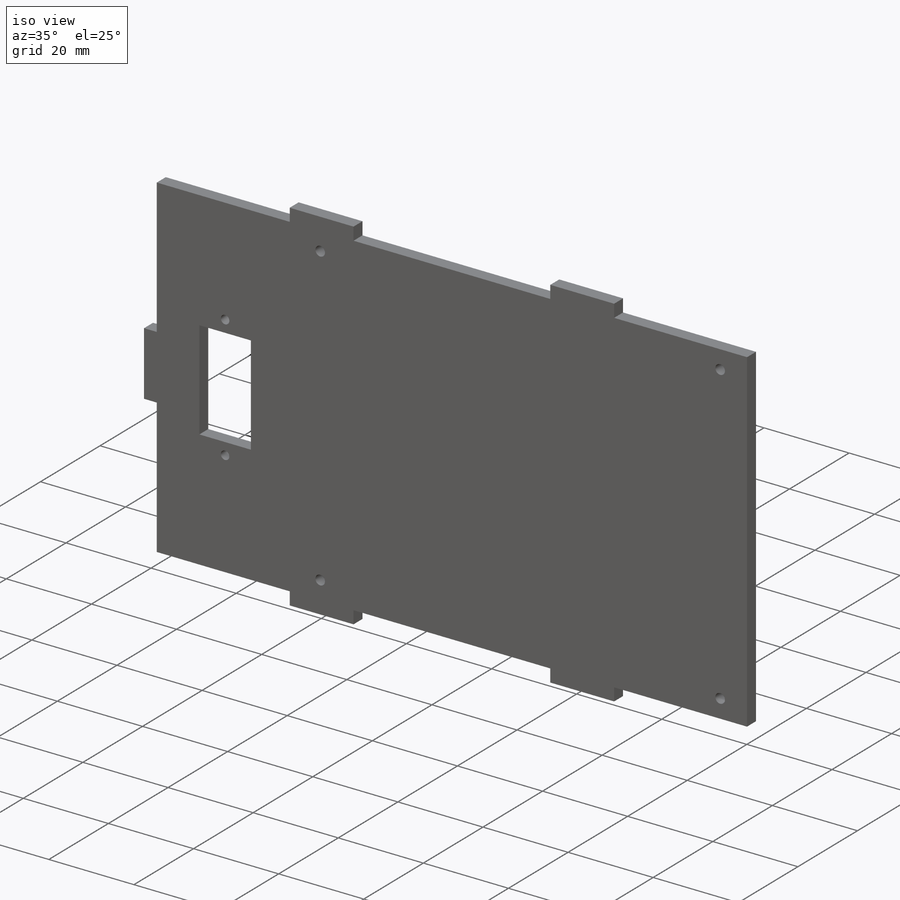
[diagram: iso view]
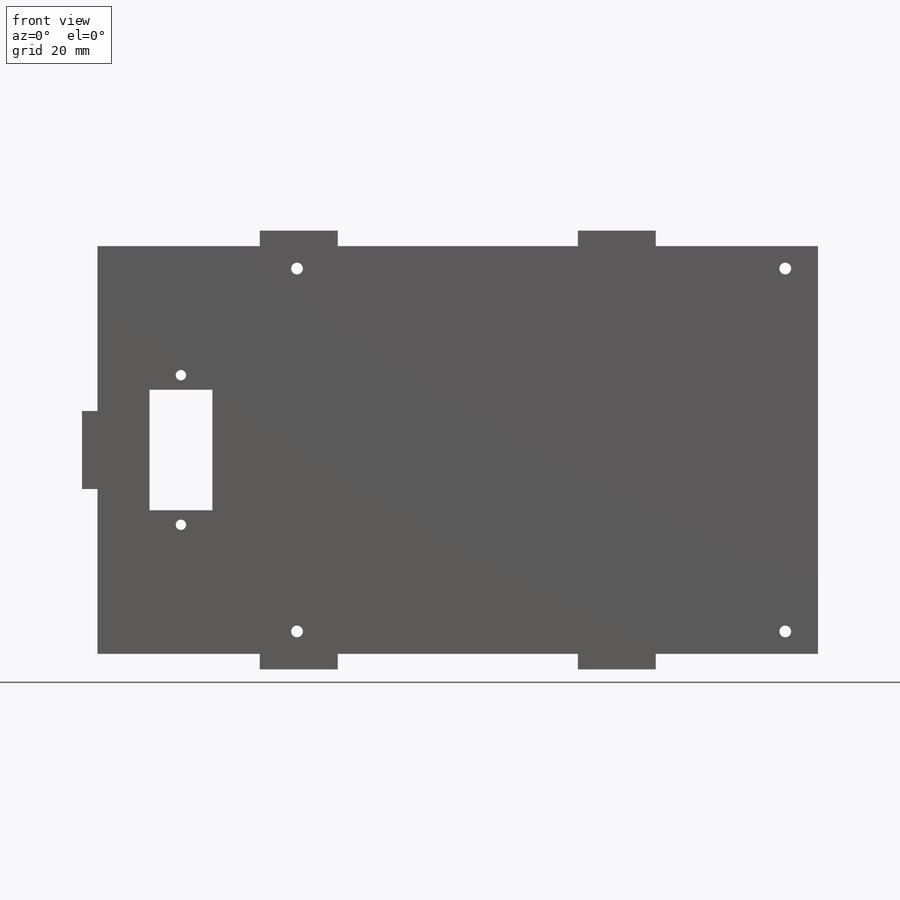
[diagram: front view]
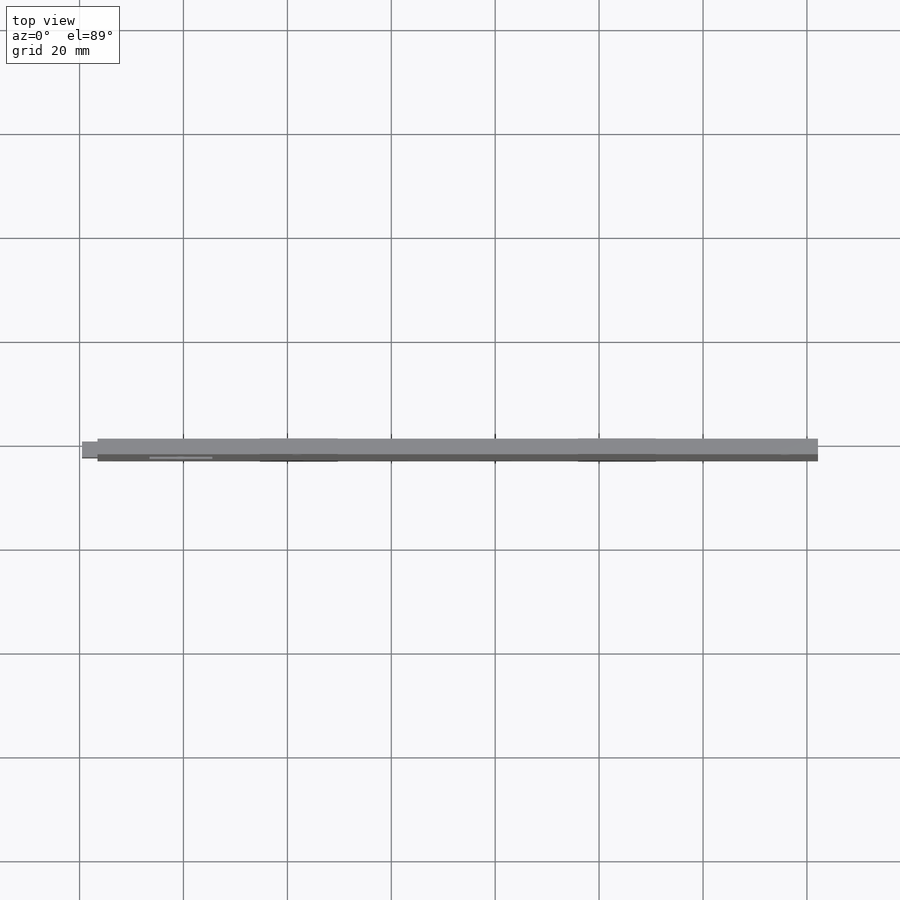
[diagram: top view]
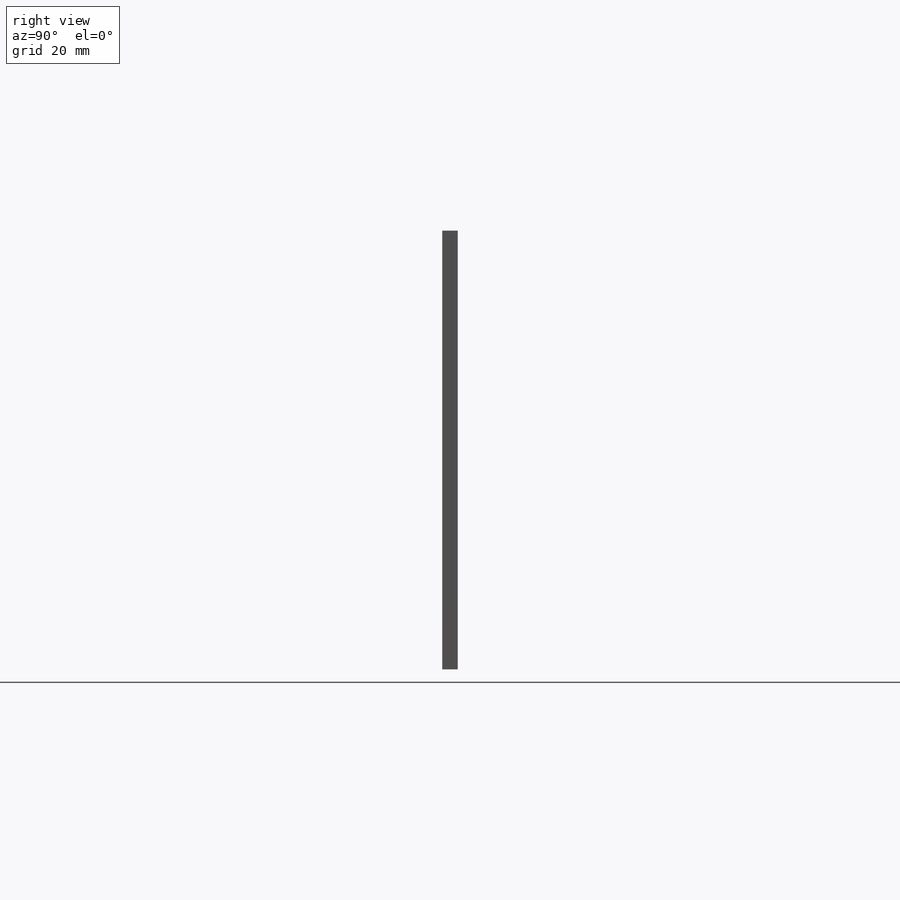
[diagram: right view]
SOLIDWORKS PART (.sldprt)
format: sldprt  version: not decoded by parser v0  size: 240,128 bytes
history: native  units: mm
features: sketch x3, cut_extrude x2, material x1, extrude x1 (+11 scaffold rows collapsed)
feature tree (18):
  scaffold x11  (default folders/planes/origin — collapsed)
  material  "Material <not specified>"
  sketch  "Sketch1"  dims[c1.D1=133.7mm c1.D2=77.47mm c2.D1=15.0mm c2.D3=15.0mm c2.D4=15.0mm c2.D5=15.0mm c2.D6=31.23mm c2.D7=46.23mm c2.D8=31.233mm c2.D9=31.23mm c2.D10=31.23mm c2.D11=3.0mm c2.D12=3.0mm c2.D13=3.0mm c3.D12=3.0mm c3.D14=3.0mm c3.D15=31.735mm c3.D16=3.0mm c3.D17=15.0mm c3.D18=77.47mm c3.D2=15.0mm c4.D18=31.735mm c4.D19=3.0mm c4.D20=31.735mm c4.D21=31.735mm c5.D18=78.47mm c5.D19=3.0mm]
  extrude  "Boss-Extrude1"  Depth=3mm
  sketch  "Sketch2"  dims[D1=2.26mm D2=2.26mm D3=2.26mm D4=2.26mm D5=4.31mm D6=4.31mm D7=4.31mm D8=4.31mm D9=100.29mm D10=6.31mm D11=100.29mm D12=6.31mm]
  cut_extrude  "Cut-Extrude1"  Depth=3mm
  sketch  "Sketch3"  dims[c1.D5=2.0mm c1.D6=2.0mm c1.D1=23.2mm c1.D2=12.1mm c1.D3=10.0mm c1.D4=27.63mm c2.D5=46.23mm c2.D7=2.8mm c2.D8=2.8mm]
  cut_extrude  "Cut-Extrude4"  Depth=3mm
decode coverage: 6 of 6 modeling features carry decoded parameters
note: suppression state not decoded; provenance and decode notes live in map.json
